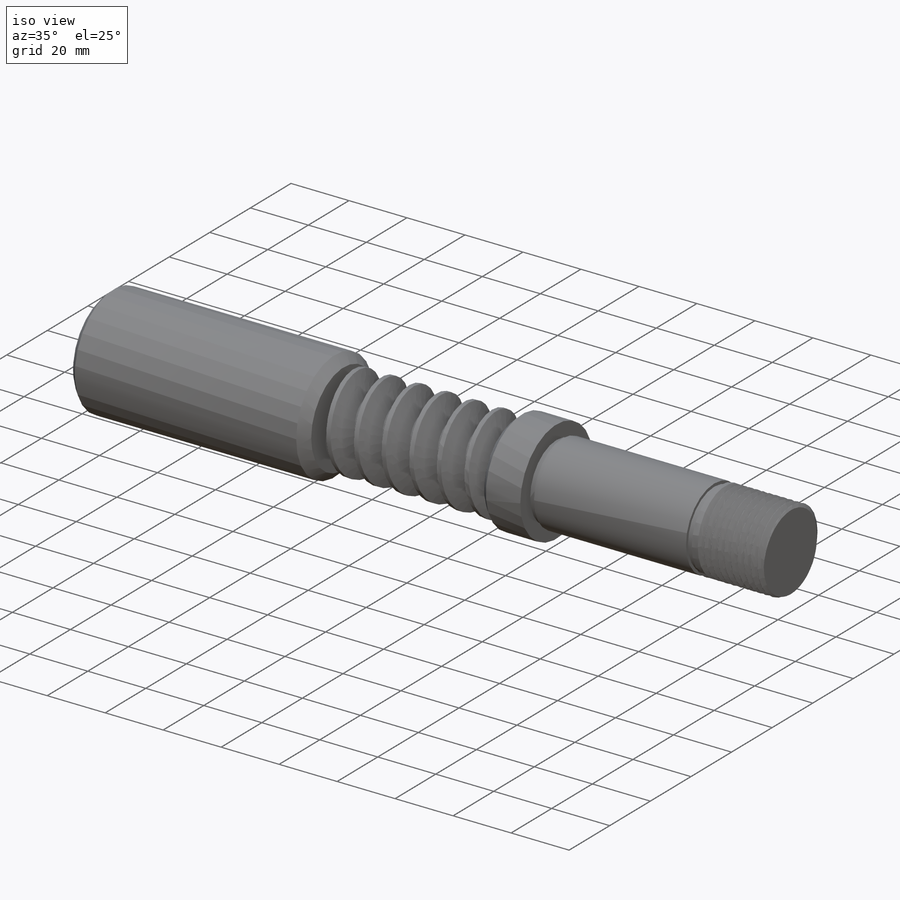
[diagram: iso view]
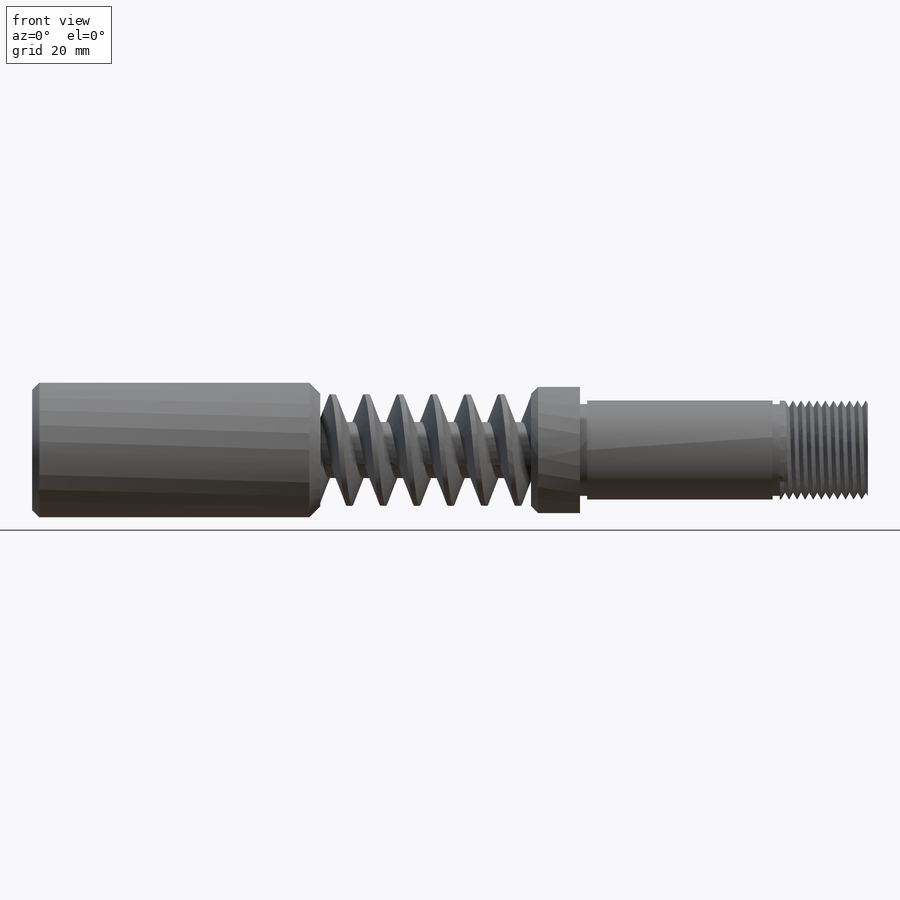
[diagram: front view]
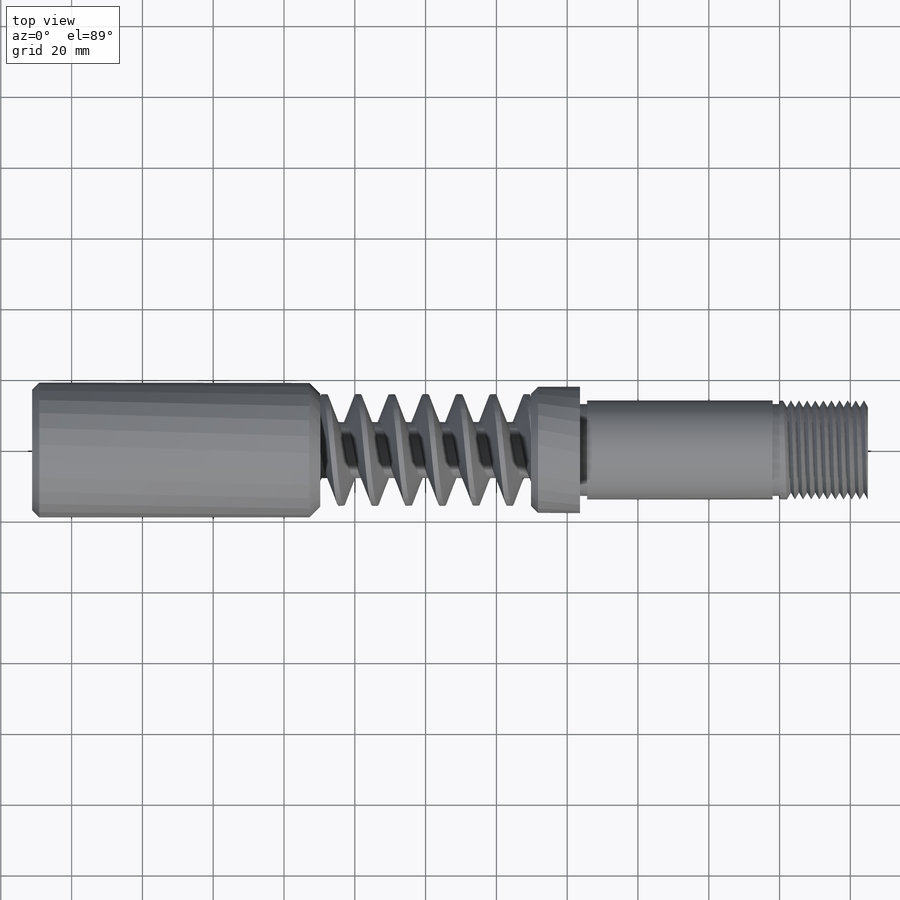
[diagram: top view]
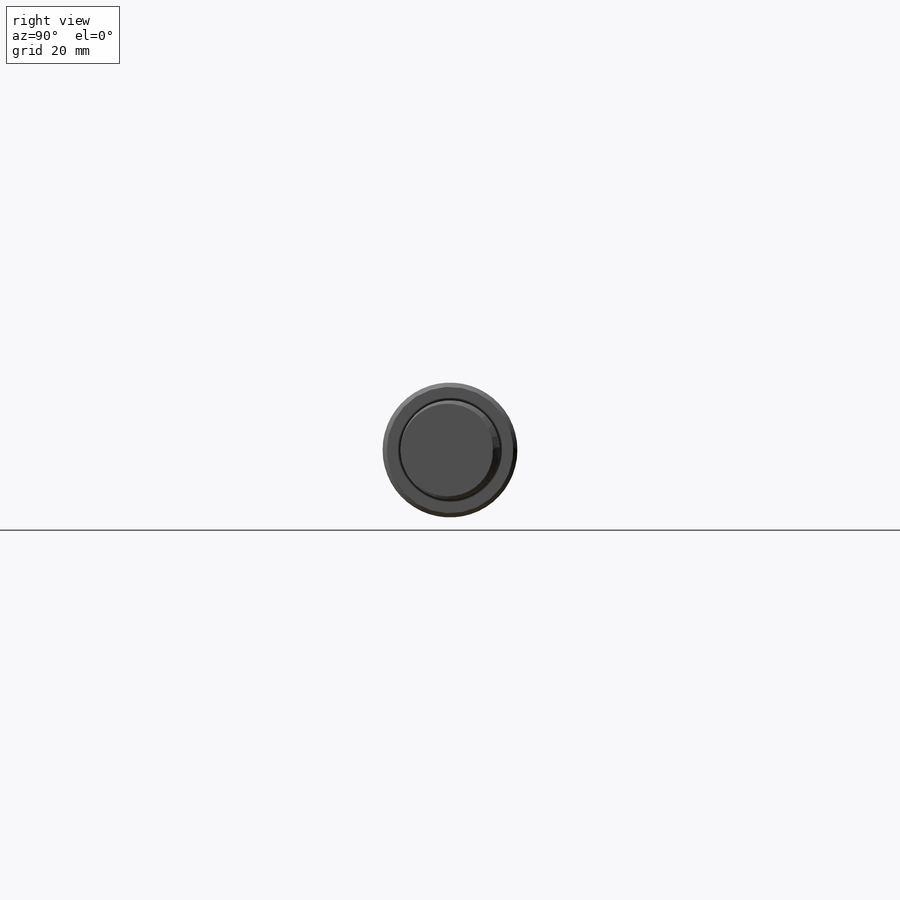
[diagram: right view]
SOLIDWORKS PART (.sldprt)
format: sldprt  version: not decoded by parser v0  size: 737,280 bytes
history: native  units: mm
features: sketch x12, extrude x4, cut_extrude x4, chamfer x3, helix x2, sweep x2, material x1, plane x1 (+12 scaffold rows collapsed)
feature tree (41):
  scaffold x12  (default folders/planes/origin — collapsed)
  material  "Material <not specified>"
  sketch  "Sketch1"  dims[D1=31.5976mm]
  extrude  "Boss-Extrude1"  Depth=59.5376mm
  sketch  "Sketch18"
  helix  "Helix/Spiral5"  Pitch=59.5376mm
  sketch  "Sketch19"  dims[c1.D1=2.1717mm c1.D2=~4.181865mm c2.D2=79.0deg c2.D3=7.9502mm c2.D1=~3.241935mm c3.D1=20.0deg c3.D2=3.9624mm c3.D3=7.9248mm c4.D2=3.9624mm c4.D3=5.1816mm c4.D4=~4.062407mm c5.D4=110.0deg c6.D4=23.8252mm c6.D5=9.525mm c6.D6=~9.929097mm c6.D2=7.9502mm c7.D6=3.9624mm c7.D1=~5.465134mm c8.D1=20.0deg c9.D1=~3.079774mm c10.D1=20.0deg c10.D2=7.9502mm c10.D6=~1.983503mm c11.D1=3.9624mm c11.D6=~3.079774mm c12.D6=~28.726131deg c12.D1=~3.079774mm c13.D1=20.0deg c14.D1=~3.079774mm c15.D1=20.0deg c15.D3=7.9502mm c16.D3=40.0deg c17.D3=5.1816mm c17.D6=~3.079774mm c18.D6=~36.080132deg c18.D1=~9.059294mm c19.D1=~28.648922deg c20.D1=7.9502mm c21.D1=20.0deg c22.D1=7.9502mm c22.D2=~2.011009mm c23.D2=20.0deg c23.D6=~2.443824mm c24.D6=20.0deg c24.D7=~2.801915mm c25.D7=20.0deg c26.D7=3.9624mm c26.D2=~4.518506mm c27.D2=20.0deg c27.D5=9.525mm c27.D6=3.9878mm c28.D6=~28.572092deg c29.D6=0.127mm c29.D8=15.9004mm c30.D6=0.0889mm c30.D5=~2.678681mm c31.D5=20.0deg c31.D6=0.0889mm]
  sweep  "Cut-Sweep5"
  sketch  "Sketch9"  dims[D1=35.7124mm]
  extrude  "Boss-Extrude3"  Depth=13.8684mm
  chamfer  "Chamfer2"  Distance=2.00152mm Angle=45deg
  sketch  "Sketch10"  dims[D1=38.1mm]
  extrude  "Boss-Extrude4"  Depth=81.3816mm
  sketch  "Sketch11"  dims[D1=12.065mm]
  cut_extrude  "Cut-Extrude1"  Depth=73.4314mm
  sketch  "Sketch12"  dims[D1=6.35mm D2=7.62mm]
  cut_extrude  "Cut-Extrude2"  Depth=57.5564mm
  chamfer  "Chamfer6"  Distance=2.00406mm Angle=45deg
  sketch  "Sketch13"  dims[D1=27.94mm]
  extrude  "Boss-Extrude5"  Depth=81.3054mm
  sketch  "Sketch14"
  helix  "Helix/Spiral3"  Pitch=23.749mm
  sketch  "Sketch15"  dims[D1=3.302mm D2=~1.733367mm]
  sweep  "Cut-Sweep3"
  sketch  "Sketch16"  dims[D1=~25.93848mm]
  chamfer  "Chamfer7"  Distance=3.048mm Angle=45deg
  cut_extrude  "Cut-Extrude3"  Depth=2.00152mm
  plane  "Plane1"  Offset=24.892mm
  sketch  "Sketch20"  dims[D1=~25.93848mm]
  cut_extrude  "Cut-Extrude4"  Depth=2.00152mm
decode coverage: 23 of 27 modeling features carry decoded parameters
note: ~ marks probable driven/reference dimensions
note: suppression state not decoded; provenance and decode notes live in map.json
